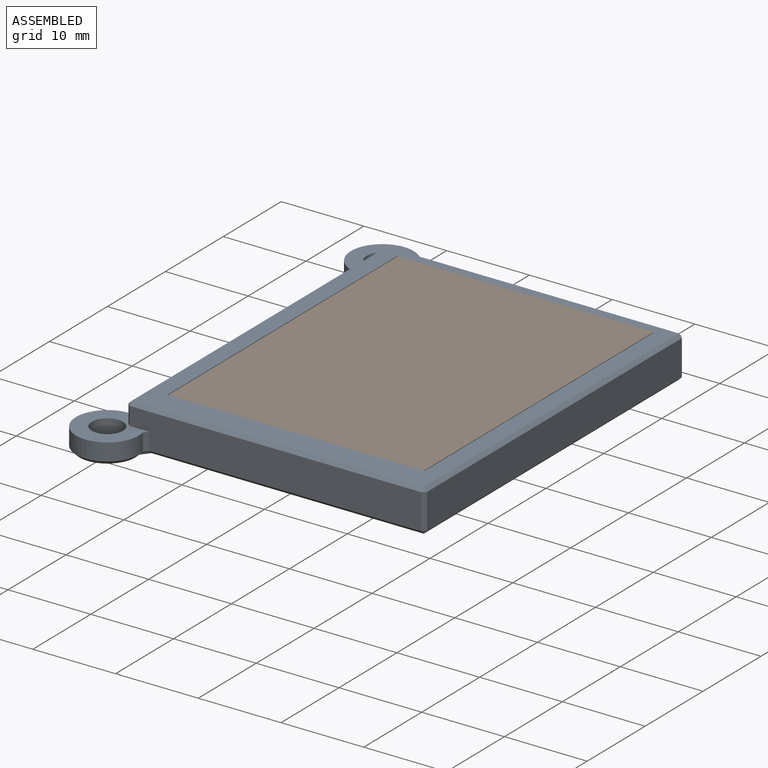
[diagram: assembled view]
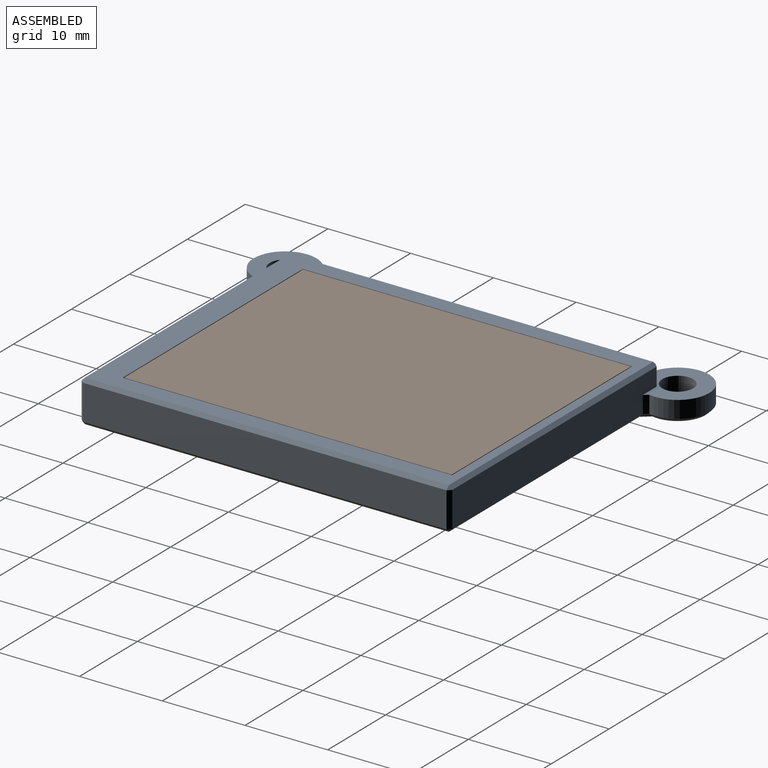
[diagram: assembled view, second angle]
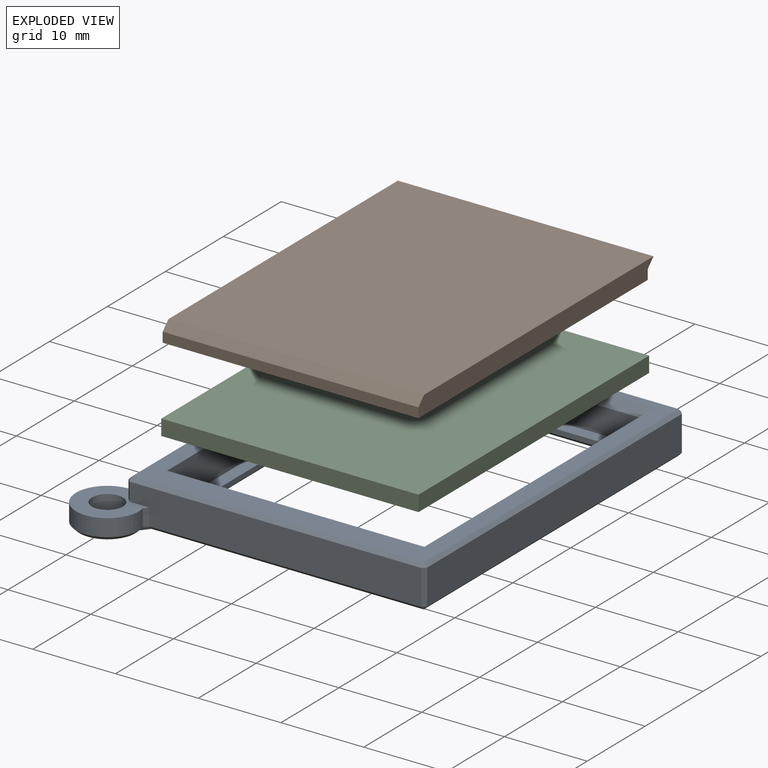
[diagram: exploded view]
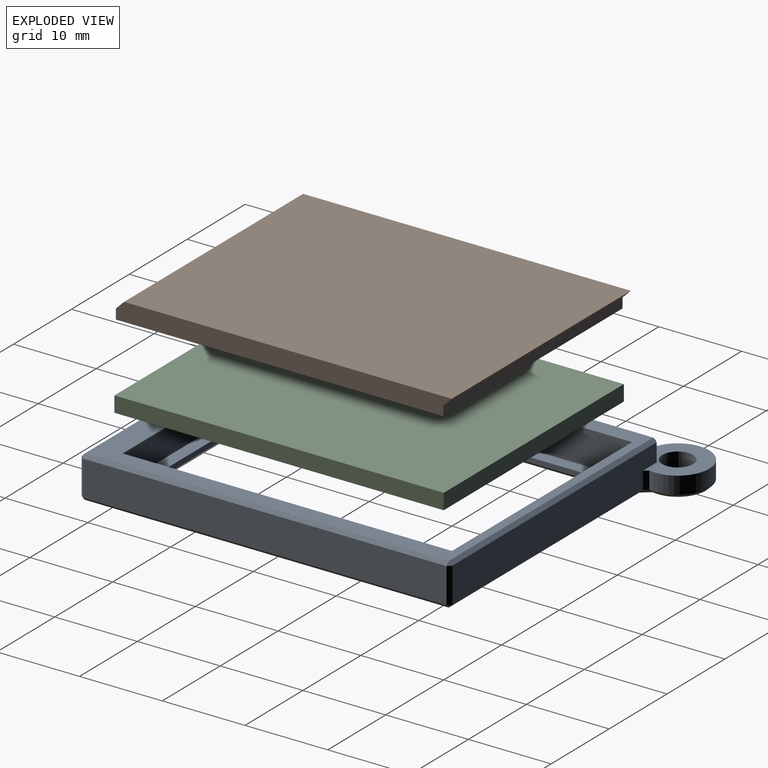
[diagram: exploded view, second angle]
ASSEMBLY  parts=3 mates=2
PART A: 57 faces, bbox 41.2x55.1x5.1 mm
  f0: plane 43.97x4.27mm, normal (-1,0,0), area 177.7mm2, adj f19,f22,f23,f25,f26,f44,f48,f50
  f1: plane 35.27x4.27mm, normal (0,1,0), area 145.5mm2, adj f19,f31,f36,f41,f47,f50
  f2: plane 39.8x31.1mm, normal (0,0,1), area 203.7mm2, adj f4,f7,f8,f9,f11,f12,f13,f14
  f3: plane 35.27x4.27mm, normal (0,-1,0), area 145.5mm2, adj f22,f28,f33,f38,f43,f44
  f4: plane 28.1x0.58mm, normal (0,-1,0), area 16.4mm2, adj f2,f7,f8,f54
  f5: plane 54.22x40.39mm, normal (0,0,-1), area 501.3mm2, adj f24,f26,f27,f29,f30,f32,f33,f34
  f6: plane 43.97x4.27mm, normal (1,0,0), area 187.6mm2, adj f37,f38,f41,f42
  f7: plane 36.8x0.58mm, normal (-1,0,0), area 21.5mm2, adj f2,f4,f9,f56
  f8: plane 36.8x0.58mm, normal (1,0,0), area 21.5mm2, adj f2,f4,f9,f53
  f9: plane 28.1x0.58mm, normal (0,1,0), area 16.4mm2, adj f2,f7,f8,f55
  f10: plane 43.97x35.27mm, normal (0,0,1), area 312.7mm2, adj f12,f13,f15,f16,f42,f43,f47,f48
  f11: plane 31.1x3.1mm, normal (0,-1,0), area 96.4mm2, adj f2,f12,f13,f16
  f12: plane 40.8x4.1mm, normal (-1,0,0), area 163.2mm2, adj f2,f10,f11,f14,f15,f16
  f13: plane 40.8x4.1mm, normal (1,0,0), area 163.2mm2, adj f2,f10,f11,f14,f15,f16
  f14: plane 31.1x3.1mm, normal (0,1,0), area 96.4mm2, adj f2,f12,f13,f15
  f15: plane 31.1x1mm, normal (0,0.71,-0.71), area 44mm2, adj f10,f12,f13,f14
  f16: plane 31.1x1mm, normal (0,-0.71,0.71), area 44mm2, adj f10,f11,f12,f13
  f17: cylinder r=1.88mm len=3.75mm, axis (0,0,-1), area 24.5mm2, adj f19,f52
  f18: cylinder r=3.8mm len=7.6mm, axis (0,0,-1), area 40.7mm2, adj f19,f25,f31,f32
  f19: plane 7.92x7.92mm, normal (0,0,1), area 31.5mm2, adj f0,f1,f17,f18,f25,f31,f50
  f20: cylinder r=3.8mm len=7.6mm, axis (0,0,-1), area 40.7mm2, adj f22,f23,f27,f28
  f21: cylinder r=1.88mm len=3.75mm, axis (0,0,-1), area 24.5mm2, adj f22,f51
  f22: plane 7.92x7.92mm, normal (0,0,1), area 31.5mm2, adj f0,f3,f20,f21,f23,f28,f44
  f23: plane 2.08x0.51mm, normal (-0.63,0.78,0), area 1.4mm2, adj f0,f20,f22,f24
  f24: plane 1.01x0.81mm, normal (-0.53,0.66,-0.53), area 0.5mm2, adj f5,f23,f26,f27
  f25: plane 2.08x0.51mm, normal (-0.63,-0.78,0), area 1.4mm2, adj f0,f18,f19,f29
  f26: plane 39.22x0.42mm, normal (-0.71,0,-0.71), area 23.1mm2, adj f0,f5,f24,f29
  f27: cone r=3.38mm half-angle=45deg, axis (0,0,1), area 10.9mm2, adj f5,f20,f24,f30
  f28: plane 2.08x0.51mm, normal (0.78,-0.63,0), area 1.4mm2, adj f3,f20,f22,f30
  f29: plane 1.01x0.81mm, normal (-0.53,-0.66,-0.53), area 0.5mm2, adj f5,f25,f26,f32
  f30: plane 1.01x0.81mm, normal (0.66,-0.53,-0.53), area 0.5mm2, adj f5,f27,f28,f33
  f31: plane 2.08x0.51mm, normal (0.78,0.63,0), area 1.4mm2, adj f1,f18,f19,f34
  f32: cone r=3.8mm half-angle=45deg, axis (0,0,1), area 10.9mm2, adj f5,f18,f29,f34
  f33: plane 32.89x0.42mm, normal (0,-0.71,-0.71), area 19.4mm2, adj f3,f5,f30,f35
  f34: plane 1.01x0.81mm, normal (0.66,0.53,-0.53), area 0.5mm2, adj f5,f31,f32,f36
  f35: plane 0.42x0.42mm, normal (0.58,-0.58,-0.58), area 0.2mm2, adj f33,f37,f38
  f36: plane 32.89x0.42mm, normal (0,0.71,-0.71), area 19.4mm2, adj f1,f5,f34,f39
  f37: plane 43.97x0.42mm, normal (0.71,0,-0.71), area 25.9mm2, adj f5,f6,f35,f39
  f38: plane 4.27x0.42mm, normal (0.71,-0.71,0), area 2.5mm2, adj f3,f6,f35,f40
  f39: plane 0.42x0.42mm, normal (0.58,0.58,-0.58), area 0.2mm2, adj f36,f37,f41
  f40: plane 0.42x0.42mm, normal (0.58,-0.58,0.58), area 0.2mm2, adj f38,f42,f43
  f41: plane 4.27x0.42mm, normal (0.71,0.71,0), area 2.5mm2, adj f1,f6,f39,f45
  f42: plane 43.97x0.42mm, normal (0.71,0,0.71), area 25.9mm2, adj f6,f10,f40,f45
  f43: plane 35.27x0.42mm, normal (0,-0.71,0.71), area 20.8mm2, adj f3,f10,f40,f46
  f44: plane 2.18x0.42mm, normal (-0.71,-0.71,0), area 1.3mm2, adj f0,f3,f22,f46
  f45: plane 0.42x0.42mm, normal (0.58,0.58,0.58), area 0.2mm2, adj f41,f42,f47
  f46: plane 0.42x0.42mm, normal (-0.58,-0.58,0.58), area 0.2mm2, adj f43,f44,f48
  f47: plane 35.27x0.42mm, normal (0,0.71,0.71), area 20.8mm2, adj f1,f10,f45,f49
  f48: plane 43.97x0.42mm, normal (-0.71,0,0.71), area 25.9mm2, adj f0,f10,f46,f49
  f49: plane 0.42x0.42mm, normal (-0.58,0.58,0.58), area 0.2mm2, adj f47,f48,f50
  f50: plane 2.18x0.42mm, normal (-0.71,0.71,0), area 1.3mm2, adj f0,f1,f19,f49
  f51: cone r=1.88mm half-angle=45deg, axis (0,0,-1), area 7.7mm2, adj f5,f21
  f52: cone r=2.29mm half-angle=45deg, axis (0,0,-1), area 7.7mm2, adj f5,f17
  f53: plane 37.63x0.42mm, normal (0.71,0,-0.71), area 21.9mm2, adj f5,f8,f54,f55
  f54: plane 28.93x0.42mm, normal (0,-0.71,-0.71), area 16.8mm2, adj f4,f5,f53,f56
  f55: plane 28.93x0.42mm, normal (0,0.71,-0.71), area 16.8mm2, adj f5,f9,f53,f56
  f56: plane 37.63x0.42mm, normal (-0.71,0,-0.71), area 21.9mm2, adj f5,f7,f54,f55
PART B: 8 faces, bbox 30.9x40.6x2.2 mm
  f0: plane 39.6x30.9mm, normal (0,0,1), area 1223.6mm2, adj f1,f4,f5,f7
  f1: plane 40.6x2.2mm, normal (-1,0,0), area 87.1mm2, adj f0,f2,f3,f5,f6,f7
  f2: plane 39.6x30.9mm, normal (0,0,-1), area 1223.6mm2, adj f1,f3,f4,f6
  f3: plane 30.9x1.2mm, normal (0,1,0), area 37.1mm2, adj f1,f2,f4,f7
  f4: plane 40.6x2.2mm, normal (1,0,0), area 87.1mm2, adj f0,f2,f3,f5,f6,f7
  f5: plane 30.9x1mm, normal (0,-0.71,0.71), area 43.7mm2, adj f0,f1,f4,f6
  f6: plane 30.9x1.2mm, normal (0,-1,0), area 37.1mm2, adj f1,f2,f4,f5
  f7: plane 30.9x1mm, normal (0,0.71,-0.71), area 43.7mm2, adj f0,f1,f3,f4
PART C: 6 faces, bbox 31.1x39.8x1.9 mm
  f0: plane 31.1x1.9mm, normal (0,1,0), area 59.1mm2, adj f1,f3,f4,f5
  f1: plane 39.8x1.9mm, normal (-1,0,0), area 75.6mm2, adj f0,f2,f4,f5
  f2: plane 31.1x1.9mm, normal (0,-1,0), area 59.1mm2, adj f1,f3,f4,f5
  f3: plane 39.8x1.9mm, normal (1,0,0), area 75.6mm2, adj f0,f2,f4,f5
  f4: plane 39.8x31.1mm, normal (0,0,1), area 1237.8mm2, adj f0,f1,f2,f3
  f5: plane 39.8x31.1mm, normal (0,0,-1), area 1237.8mm2, adj f0,f1,f2,f3
PLACE A t=(0,0,-1)mm
PLACE B t=(0,0,0.3)mm
PLACE C at identity fixed
MATE fastened C.f5 <-> A.f2  axis (0,0,1) through (0,0,0)mm
MATE slider B.f0 <-> C.f4  axis (0,0,1) through (0,0,4.1)mm
